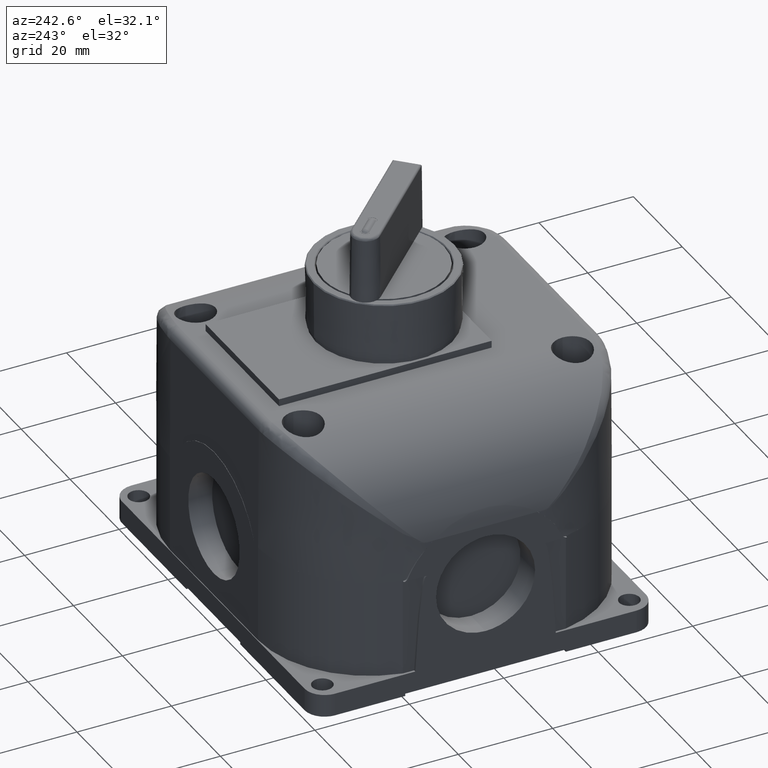
[diagram: clean part render]
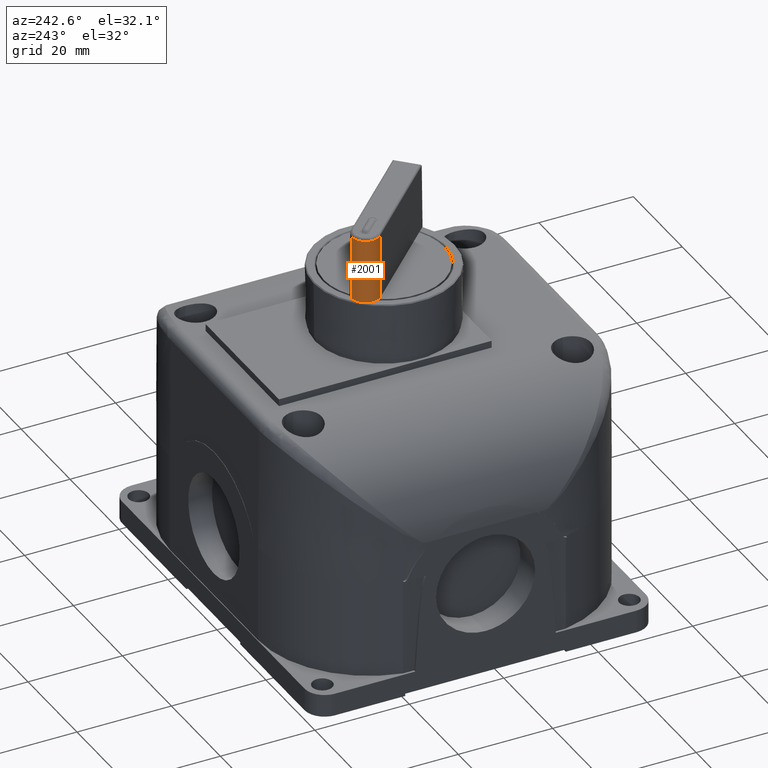
[diagram: same view with one face highlighted and labeled with its STEP entity id]
A machine part, auxiliary view. The second image highlights one B-rep face of the part: STEP entity #2001.
In plain terms, the highlighted conical surface has half-angle 0.5 deg.
Its self-contained STEP definition (entity closure, byte-faithful):
#825 = VERTEX_POINT ( 'NONE', #5556 ) ;
#904 = DIRECTION ( 'NONE',  ( 0.006170592427165145187, 0.006170592427165035032, 0.9999619230641711987 ) ) ;
#2001 = ADVANCED_FACE ( 'NONE', ( #13361 ), #21481, .T. ) ;
#2686 = DIRECTION ( 'NONE',  ( -0.000000000000000000, -5.782411586588736411E-16, 1.000000000000000000 ) ) ;
#2811 = DIRECTION ( 'NONE',  ( 0.000000000000000000, 0.008726535498435383786, -0.9999619230641707546 ) ) ;
#2976 = EDGE_CURVE ( 'NONE', #9259, #11567, #23097, .T. ) ;
#3966 = ORIENTED_EDGE ( 'NONE', *, *, #16470, .F. ) ;
#4338 = DIRECTION ( 'NONE',  ( 0.000000000000000000, 1.000000000000000000, 0.000000000000000000 ) ) ;
#4673 = DIRECTION ( 'NONE',  ( 0.000000000000000000, 1.000000000000000000, 0.000000000000000000 ) ) ;
#5068 = DIRECTION ( 'NONE',  ( 2.065252680604080093E-16, 2.895854359943319766E-16, -1.000000000000000000 ) ) ;
#5556 = CARTESIAN_POINT ( 'NONE',  ( 1.230194947747837331, -1.186487537564266059, 2.677165354331477509 ) ) ;
#5777 = CARTESIAN_POINT ( 'NONE',  ( 1.233475778251092558, -1.183206707060988627, 3.208833199518391854 ) ) ;
#6006 = ORIENTED_EDGE ( 'NONE', *, *, #20158, .T. ) ;
#6315 = VERTEX_POINT ( 'NONE', #5777 ) ;
#6721 = LINE ( 'NONE', #10312, #11636 ) ;
#7774 = CIRCLE ( 'NONE', #17661, 0.1181102362205045109 ) ;
#7911 = CARTESIAN_POINT ( 'NONE',  ( 1.313711496706880144, -1.102970988605192826, 2.677165354333225888 ) ) ;
#9230 = AXIS2_PLACEMENT_3D ( 'NONE', #23560, #5068, #22064 ) ;
#9259 = VERTEX_POINT ( 'NONE', #15741 ) ;
#9678 = EDGE_CURVE ( 'NONE', #18070, #11567, #12319, .T. ) ;
#10174 = CIRCLE ( 'NONE', #22086, 0.1181102362205045109 ) ;
#10312 = CARTESIAN_POINT ( 'NONE',  ( -120.0028032169270205, -122.4194857022369831, -19643.47244094488269 ) ) ;
#10390 = AXIS2_PLACEMENT_3D ( 'NONE', #14194, #10591, #4673 ) ;
#10591 = DIRECTION ( 'NONE',  ( 0.000000000000000000, 5.782411586588736411E-16, -1.000000000000000000 ) ) ;
#11465 = CARTESIAN_POINT ( 'NONE',  ( 1.313711496706880144, -1.102970988605192826, 2.677165354330988123 ) ) ;
#11567 = VERTEX_POINT ( 'NONE', #15669 ) ;
#11636 = VECTOR ( 'NONE', #904, 39.37007874015748143 ) ;
#11862 = DIRECTION ( 'NONE',  ( 0.000000000000000000, 5.782411586588736411E-16, -1.000000000000000000 ) ) ;
#12319 = LINE ( 'NONE', #21417, #23068 ) ;
#13361 = FACE_OUTER_BOUND ( 'NONE', #24432, .T. ) ;
#13562 = CARTESIAN_POINT ( 'NONE',  ( 1.208482410172938337, -1.156607424423501840, 2.677165354330861557 ) ) ;
#14194 = CARTESIAN_POINT ( 'NONE',  ( 1.313711496706880144, -1.102970988605192826, 2.677165354330988123 ) ) ;
#14676 = EDGE_CURVE ( 'NONE', #9259, #17747, #7774, .T. ) ;
#15669 = CARTESIAN_POINT ( 'NONE',  ( 1.313711496706880144, -0.9848607523846881762, 2.677165354330988123 ) ) ;
#15741 = CARTESIAN_POINT ( 'NONE',  ( 1.200428591372363130, -1.136392706978588629, 2.677165354330866887 ) ) ;
#15904 = AXIS2_PLACEMENT_3D ( 'NONE', #7911, #11862, #4338 ) ;
#16470 = EDGE_CURVE ( 'NONE', #825, #17747, #10174, .T. ) ;
#16587 = DIRECTION ( 'NONE',  ( 0.000000000000000000, 5.782411586588736411E-16, -1.000000000000000000 ) ) ;
#17661 = AXIS2_PLACEMENT_3D ( 'NONE', #21543, #2686, #22271 ) ;
#17747 = VERTEX_POINT ( 'NONE', #13562 ) ;
#18070 = VERTEX_POINT ( 'NONE', #18630 ) ;
#18630 = CARTESIAN_POINT ( 'NONE',  ( 1.313711496706880144, -0.9895005473782726435, 3.208833199518811519 ) ) ;
#18812 = DIRECTION ( 'NONE',  ( 0.000000000000000000, 1.000000000000000000, 0.000000000000000000 ) ) ;
#19943 = CIRCLE ( 'NONE', #9230, 0.1134704412269201962 ) ;
#20158 = EDGE_CURVE ( 'NONE', #6315, #18070, #19943, .T. ) ;
#20730 = ORIENTED_EDGE ( 'NONE', *, *, #22506, .T. ) ;
#21417 = CARTESIAN_POINT ( 'NONE',  ( 1.313711496706880144, -0.9848607523847077161, 2.677165354333225888 ) ) ;
#21481 = CONICAL_SURFACE ( 'NONE', #15904, 0.1181102362204851097, 0.008726646260032520919 ) ;
#21543 = CARTESIAN_POINT ( 'NONE',  ( 1.313711496706880144, -1.102970988605192826, 2.677165354330988123 ) ) ;
#22064 = DIRECTION ( 'NONE',  ( 0.000000000000000000, 1.000000000000000000, 0.000000000000000000 ) ) ;
#22086 = AXIS2_PLACEMENT_3D ( 'NONE', #11465, #16587, #18812 ) ;
#22095 = ORIENTED_EDGE ( 'NONE', *, *, #14676, .T. ) ;
#22271 = DIRECTION ( 'NONE',  ( -2.312964634635114728E-15, 1.000000000000000000, 0.000000000000000000 ) ) ;
#22506 = EDGE_CURVE ( 'NONE', #825, #6315, #6721, .T. ) ;
#23068 = VECTOR ( 'NONE', #2811, 39.37007874015748143 ) ;
#23097 = CIRCLE ( 'NONE', #10390, 0.1181102362205045109 ) ;
#23115 = ORIENTED_EDGE ( 'NONE', *, *, #2976, .F. ) ;
#23560 = CARTESIAN_POINT ( 'NONE',  ( 1.313711496706880144, -1.102970988605193048, 3.208833199518811519 ) ) ;
#24432 = EDGE_LOOP ( 'NONE', ( #6006, #24479, #23115, #22095, #3966, #20730 ) ) ;
#24479 = ORIENTED_EDGE ( 'NONE', *, *, #9678, .T. ) ;